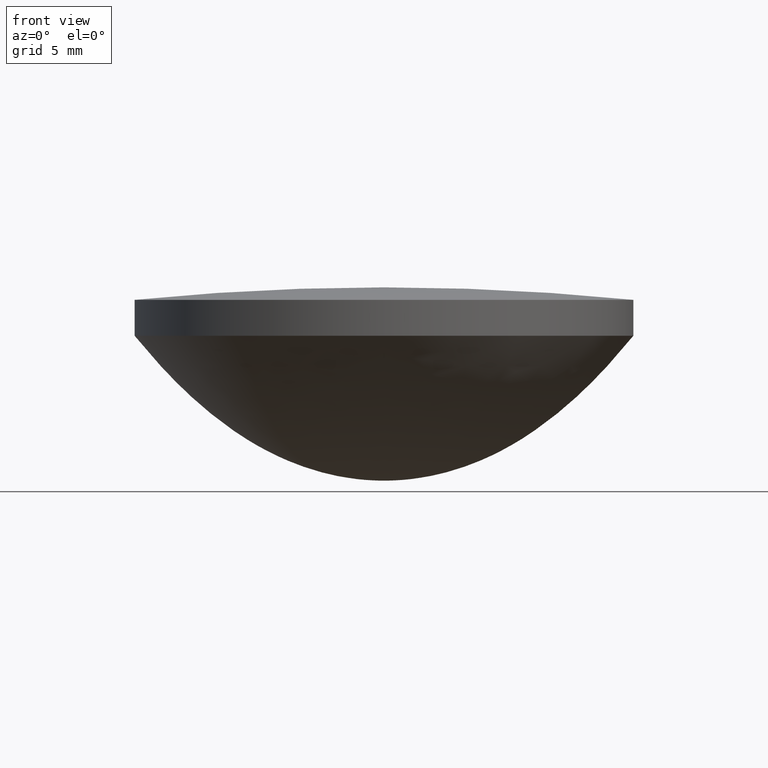
[diagram: clean part render]
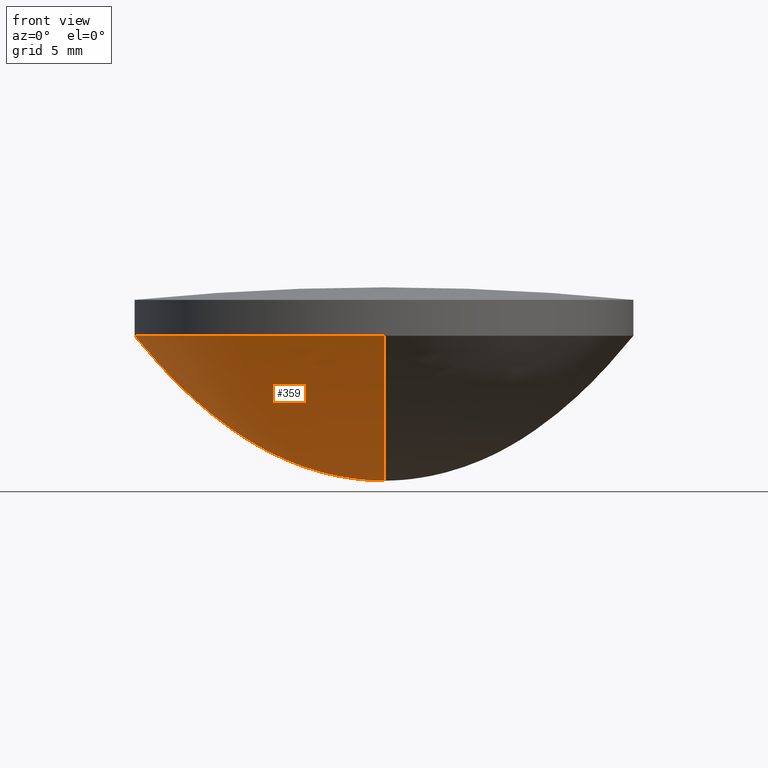
[diagram: same view with one face highlighted and labeled with its STEP entity id]
A machine part, front view. The second image highlights one B-rep face of the part: STEP entity #359.
In plain terms, the highlighted face is a freeform B-spline surface patch.
Its self-contained STEP definition (entity closure, byte-faithful):
#3 = CARTESIAN_POINT ( 'NONE',  ( -2.811554158391679440E-14, -7.157585622776480250, 1.374870183044279770 ) ) ;
#6 = CARTESIAN_POINT ( 'NONE',  ( 16.89259275161060003, -1.951477309285249975E-14, 8.115823315752111355 ) ) ;
#8 = CARTESIAN_POINT ( 'NONE',  ( 0.000000000000000000, 10.35384685393950122, 2.923093322599569888 ) ) ;
#10 = CARTESIAN_POINT ( 'NONE',  ( -18.24433404062659037, -18.24433404062659037, 9.533024363435600890 ) ) ;
#13 = CARTESIAN_POINT ( 'NONE',  ( 13.49554542342179886, -1.950388798514850016E-14, 5.052175101878270347 ) ) ;
#14 = CARTESIAN_POINT ( 'NONE',  ( 0.2778925748532846685, -0.2778925748533313533, -8.029777013077946901E-17 ) ) ;
#21 = CARTESIAN_POINT ( 'NONE',  ( 1.577721810442019932E-30, 7.157585622776470480, 1.374870183044279770 ) ) ;
#24 = CARTESIAN_POINT ( 'NONE',  ( 0.000000000000000000, 9.103154552021610613, 2.244514169672520154 ) ) ;
#31 = CARTESIAN_POINT ( 'NONE',  ( -2.642407831735599011, -2.642407831735563928, 0.1778472089289619973 ) ) ;
#35 = CARTESIAN_POINT ( 'NONE',  ( -5.350825961692438959, 1.003733193081519919E-14, 0.7621936276929139886 ) ) ;
#38 = CARTESIAN_POINT ( 'NONE',  ( 4.655990192516537896, 4.655990192516523685, 0.5752098556579580135 ) ) ;
#39 = CARTESIAN_POINT ( 'NONE',  ( 0.000000000000000000, 9.659041674304420511, 2.534428717358429672 ) ) ;
#41 = CARTESIAN_POINT ( 'NONE',  ( -2.587550535026699699E-14, -15.85053648169409968, 7.093137067620689962 ) ) ;
#43 = CARTESIAN_POINT ( 'NONE',  ( -2.827131229325329812E-14, -4.655990192516539672, 0.5752098556579600119 ) ) ;
#45 = CARTESIAN_POINT ( 'NONE',  ( -9.659041674304429392, 9.631636102693410516E-15, 2.534428717358429672 ) ) ;
#47 = CARTESIAN_POINT ( 'NONE',  ( 0.000000000000000000, 18.24433404062660102, 9.533024363435600890 ) ) ;
#48 = CARTESIAN_POINT ( 'NONE',  ( -2.642407831735579915, 1.009223793100509918E-14, 0.1778472089289619973 ) ) ;
#49 = CARTESIAN_POINT ( 'NONE',  ( 9.103154552021591073, -9.103154552021633705, 2.244514169672522819 ) ) ;
#51 = CARTESIAN_POINT ( 'NONE',  ( -16.89259275161062135, 16.89259275161062135, 8.115823315752120237 ) ) ;
#52 = CARTESIAN_POINT ( 'NONE',  ( 0.000000000000000000, 0.000000000000000000, 0.000000000000000000 ) ) ;
#54 = CARTESIAN_POINT ( 'NONE',  ( 8.408335420827214080, 8.408335420827201645, 1.908429821890168077 ) ) ;
#56 = CARTESIAN_POINT ( 'NONE',  ( 20.00000000000000000, -1.938359619588800056E-14, 11.62345240056929896 ) ) ;
#58 = CARTESIAN_POINT ( 'NONE',  ( 10.90969154080810277, -10.90969154080810277, 3.255762493774881694 ) ) ;
#60 = CARTESIAN_POINT ( 'NONE',  ( 0.000000000000000000, 16.89259275161060003, 8.115823315752120237 ) ) ;
#61 = CARTESIAN_POINT ( 'NONE',  ( 0.000000000000000000, 0.2778925748533090379, 0.000000000000000000 ) ) ;
#62 = B_SPLINE_CURVE_WITH_KNOTS ( 'NONE', 3,
 ( #382, #443, #606, #618, #41, #271, #671, #716, #487, #254, #105, #374, #623, #210, #322, #331, #257, #560, #610, #198, #432, #95, #501, #262, #490, #731, #206 ),
 .UNSPECIFIED., .F., .F.,
 ( 4, 1, 1, 1, 1, 1, 1, 1, 1, 1, 1, 1, 1, 1, 1, 1, 1, 1, 1, 1, 1, 1, 1, 1, 4 ),
 ( 0.000000000000000000, 0.1331924723789049969, 0.2087526336087719980, 0.2453160674682340059, 0.3161049778894040041, 0.4168348326363019996, 0.4276516619708919942, 0.4911184364520199686, 0.5117563586973169487, 0.5523118409319459632, 0.5722518825298780198, 0.6115012980729079839, 0.6308328396796499815, 0.6689534171148749930, 0.6877640771325249647, 0.7249287762474140306, 0.7433038251191860235, 0.7796807415030869715, 0.7977030364038720789, 0.8334556356452639259, 0.8512058759747900272, 0.8864937057606280257, 0.9302999929434540016, 0.9651835744165919717, 1.000000000000000000 ),
 .UNSPECIFIED. ) ;
#64 = CARTESIAN_POINT ( 'NONE',  ( -15.85053648169408724, -15.85053648169408724, 7.093137067620694403 ) ) ;
#65 = CARTESIAN_POINT ( 'NONE',  ( 0.8341952852228249338, -0.8341952852228715631, 0.01232090582175070226 ) ) ;
#67 = CARTESIAN_POINT ( 'NONE',  ( 0.000000000000000000, 12.37189568427879927, 4.222043726575119393 ) ) ;
#75 = VERTEX_POINT ( 'NONE', #392 ) ;
#78 = CARTESIAN_POINT ( 'NONE',  ( 7.157585622776450940, -7.157585622776506895, 1.374870183044279992 ) ) ;
#79 = CARTESIAN_POINT ( 'NONE',  ( 0.000000000000000000, 10.35384685393950122, 2.923093322599569888 ) ) ;
#82 = CARTESIAN_POINT ( 'NONE',  ( 1.577721810442019932E-30, 5.906801585690169887, 0.9311873066207579930 ) ) ;
#85 = FACE_OUTER_BOUND ( 'NONE', #533, .T. ) ;
#86 = CARTESIAN_POINT ( 'NONE',  ( -3.405157014967170159, 1.009083871542779999E-14, 0.3051841653787840114 ) ) ;
#89 = CARTESIAN_POINT ( 'NONE',  ( 0.000000000000000000, 12.37189568427879927, 4.222043726575119393 ) ) ;
#92 = CARTESIAN_POINT ( 'NONE',  ( 2.642407831735542167, -2.642407831735591461, 0.1778472089289608593 ) ) ;
#93 =( BOUNDED_CURVE ( )  B_SPLINE_CURVE ( 2, ( #523, #526, #454 ),
 .UNSPECIFIED., .F., .F. ) 
 B_SPLINE_CURVE_WITH_KNOTS ( ( 3, 3 ),
 ( 3.141592653589790007, 4.712388980384677239 ),
 .UNSPECIFIED. ) 
 CURVE ( )  GEOMETRIC_REPRESENTATION_ITEM ( )  RATIONAL_B_SPLINE_CURVE ( ( 1.000000000000000000, 0.7071067811865503483, 0.9999999999999976685 ) ) 
 REPRESENTATION_ITEM ( '' )  );
#95 = CARTESIAN_POINT ( 'NONE',  ( -2.827417863596979888E-14, -3.405157014967159945, 0.3051841653787840114 ) ) ;
#96 = CARTESIAN_POINT ( 'NONE',  ( -0.8341952852228531334, 0.8341952852228631254, 0.01232090582175089828 ) ) ;
#97 = CARTESIAN_POINT ( 'NONE',  ( 1.577721810442019932E-30, 1.738553428737729778, 0.07245383292584370305 ) ) ;
#98 = CARTESIAN_POINT ( 'NONE',  ( -10.35384685393950122, 9.527354666591729256E-15, 2.923093322599569888 ) ) ;
#101 = CARTESIAN_POINT ( 'NONE',  ( -1.738553428737749762, 1.007670730865139899E-14, 0.07245383292584381407 ) ) ;
#102 = CARTESIAN_POINT ( 'NONE',  ( -1.577721810442019932E-30, 4.655990192516529902, 0.5752098556579590127 ) ) ;
#103 = CARTESIAN_POINT ( 'NONE',  ( 11.74867147864679850, 11.74867147864669903, 3.790659671627021332 ) ) ;
#105 = CARTESIAN_POINT ( 'NONE',  ( -2.761224462193339863E-14, -10.35384685393950122, 2.923093322599559674 ) ) ;
#106 = CARTESIAN_POINT ( 'NONE',  ( -4.655990192516559212, -4.655990192516529902, 0.5752098556579614552 ) ) ;
#108 = CARTESIAN_POINT ( 'NONE',  ( 0.000000000000000000, 9.103154552021610613, 2.244514169672520154 ) ) ;
#110 = CARTESIAN_POINT ( 'NONE',  ( 15.85053648169400553, -15.85053648169408724, 7.093137067620694403 ) ) ;
#113 = CARTESIAN_POINT ( 'NONE',  ( 9.103154552021605284, 9.103154552021605284, 2.244514169672522819 ) ) ;
#115 = CARTESIAN_POINT ( 'NONE',  ( -12.37189568427880282, 12.37189568427880282, 4.222043726575118505 ) ) ;
#117 = CARTESIAN_POINT ( 'NONE',  ( -10.35384685393960247, -10.35384685393950477, 2.923093322599571664 ) ) ;
#119 = CARTESIAN_POINT ( 'NONE',  ( 0.000000000000000000, 14.62628593450459924, 5.970071916331059825 ) ) ;
#123 = CARTESIAN_POINT ( 'NONE',  ( -2.541210482459359900E-14, -16.89259275161060003, 8.115823315752111355 ) ) ;
#125 = CARTESIAN_POINT ( 'NONE',  ( -11.74867147864680028, 9.285022156214069516E-15, 3.790659671627030214 ) ) ;
#130 = VERTEX_POINT ( 'NONE', #155 ) ;
#136 = CARTESIAN_POINT ( 'NONE',  ( 1.224646799147349904E-15, 20.00000000000000000, 11.62345240056929896 ) ) ;
#138 = VERTEX_POINT ( 'NONE', #719 ) ;
#139 = CARTESIAN_POINT ( 'NONE',  ( 6.601634143209182959, -6.601634143209225591, 1.166639816840760346 ) ) ;
#142 = CARTESIAN_POINT ( 'NONE',  ( -2.376557567109769907E-14, -20.00000000000000000, 11.62345240056929896 ) ) ;
#143 = CARTESIAN_POINT ( 'NONE',  ( 4.655990192516509474, -4.655990192516552106, 0.5752098556579593458 ) ) ;
#145 = CARTESIAN_POINT ( 'NONE',  ( 1.577721810442019932E-30, 19.32896964386459970, 10.79889728285850126 ) ) ;
#148 = CARTESIAN_POINT ( 'NONE',  ( -1.577721810442019932E-30, 4.655990192516529902, 0.5752098556579590127 ) ) ;
#149 = CARTESIAN_POINT ( 'NONE',  ( 0.000000000000000000, 2.642407831735559931, 0.1778472089289609981 ) ) ;
#152 = CARTESIAN_POINT ( 'NONE',  ( 5.350825961692409649, -1.886630151301279650E-14, 0.7621936276929109910 ) ) ;
#155 = CARTESIAN_POINT ( 'NONE',  ( -20.00000000000000000, 2.449293598294709668E-15, 11.62345240056929896 ) ) ;
#156 = CARTESIAN_POINT ( 'NONE',  ( 1.738553428737720008, -1.834077869115169989E-14, 0.07245383292584280099 ) ) ;
#157 = B_SPLINE_CURVE_WITH_KNOTS ( 'NONE', 3,
 ( #136, #145, #367, #434, #665, #489, #376, #89, #320, #601, #79, #312, #24, #251, #395, #509, #158, #389, #492, #102, #165, #616, #149, #97, #495, #724, #201 ),
 .UNSPECIFIED., .F., .F.,
 ( 4, 1, 1, 1, 1, 1, 1, 1, 1, 1, 1, 1, 1, 1, 1, 1, 1, 1, 1, 1, 1, 1, 1, 1, 4 ),
 ( 0.000000000000000000, 0.1331924723789049969, 0.2087526336087719980, 0.2453160674682340059, 0.3161049778894040041, 0.4168348326363019996, 0.4276516619708919942, 0.4911184364520199686, 0.5117563586973169487, 0.5523118409319459632, 0.5722518825298780198, 0.6115012980729079839, 0.6308328396796499815, 0.6689534171148749930, 0.6877640771325249647, 0.7249287762474140306, 0.7433038251191860235, 0.7796807415030869715, 0.7977030364038720789, 0.8334556356452639259, 0.8512058759747900272, 0.8864937057606280257, 0.9302999929434540016, 0.9651835744165919717, 1.000000000000000000 ),
 .UNSPECIFIED. ) ;
#158 = CARTESIAN_POINT ( 'NONE',  ( 1.577721810442019932E-30, 6.601634143209209604, 1.166639816840759902 ) ) ;
#159 = CARTESIAN_POINT ( 'NONE',  ( -9.103154552021630153, 9.707118967848380341E-15, 2.244514169672520154 ) ) ;
#161 = CARTESIAN_POINT ( 'NONE',  ( -19.99999999999999645, 19.99999999999999645, 11.62345240056929541 ) ) ;
#162 = CARTESIAN_POINT ( 'NONE',  ( 1.577721810442019932E-30, 4.099995018653480372, 0.4446225274190659937 ) ) ;
#165 = CARTESIAN_POINT ( 'NONE',  ( 1.577721810442019932E-30, 4.099995018653480372, 0.4446225274190659937 ) ) ;
#166 = CARTESIAN_POINT ( 'NONE',  ( -9.103154552021605284, 9.103154552021619494, 2.244514169672522819 ) ) ;
#168 = CARTESIAN_POINT ( 'NONE',  ( -2.415991277295050037E-14, -19.32896964386459970, 10.79889728285850126 ) ) ;
#171 = CARTESIAN_POINT ( 'NONE',  ( 8.408335420827187434, -8.408335420827242501, 1.908429821890168077 ) ) ;
#173 = CARTESIAN_POINT ( 'NONE',  ( 13.49554542342180241, -13.49554542342190011, 5.052175101878271235 ) ) ;
#174 = CARTESIAN_POINT ( 'NONE',  ( 0.000000000000000000, 0.000000000000000000, 0.000000000000000000 ) ) ;
#175 = CARTESIAN_POINT ( 'NONE',  ( -9.659041674304427616, 9.659041674304427616, 2.534428717358428784 ) ) ;
#177 = CARTESIAN_POINT ( 'NONE',  ( 16.89259275161062135, 16.89259275161062135, 8.115823315752107803 ) ) ;
#178 = CARTESIAN_POINT ( 'NONE',  ( 0.000000000000000000, 10.90969154080810100, 3.255762493774890132 ) ) ;
#180 = CARTESIAN_POINT ( 'NONE',  ( -1.577721810442019932E-30, 13.49554542342190011, 5.052175101878280117 ) ) ;
#181 = CARTESIAN_POINT ( 'NONE',  ( 0.000000000000000000, 0.000000000000000000, 0.000000000000000000 ) ) ;
#183 = CARTESIAN_POINT ( 'NONE',  ( -2.710871424418359947E-14, -12.37189568427879927, 4.222043726575119393 ) ) ;
#195 = ORIENTED_EDGE ( 'NONE', *, *, #417, .F. ) ;
#196 = CARTESIAN_POINT ( 'NONE',  ( -6.601634143209210492, 6.601634143209225591, 1.166639816840770338 ) ) ;
#198 = CARTESIAN_POINT ( 'NONE',  ( -2.827131229325329812E-14, -4.655990192516539672, 0.5752098556579600119 ) ) ;
#200 = CARTESIAN_POINT ( 'NONE',  ( 5.350825961692422084, 5.350825961692402544, 0.7621936276929105469 ) ) ;
#201 = CARTESIAN_POINT ( 'NONE',  ( 0.000000000000000000, 0.000000000000000000, 0.000000000000000000 ) ) ;
#204 = CARTESIAN_POINT ( 'NONE',  ( 0.000000000000000000, 2.642407831735559931, 0.1778472089289609981 ) ) ;
#206 = CARTESIAN_POINT ( 'NONE',  ( 0.000000000000000000, 0.000000000000000000, 0.000000000000000000 ) ) ;
#207 = CARTESIAN_POINT ( 'NONE',  ( 1.577721810442019932E-30, 5.906801585690169887, 0.9311873066207579930 ) ) ;
#208 = CARTESIAN_POINT ( 'NONE',  ( -2.775176679116149740E-14, -9.659041674304420511, 2.534428717358429672 ) ) ;
#210 = CARTESIAN_POINT ( 'NONE',  ( -2.796036741346199188E-14, -8.408335420827230067, 1.908429821890170075 ) ) ;
#212 = CARTESIAN_POINT ( 'NONE',  ( 0.000000000000000000, 2.642407831735559931, 0.1778472089289609981 ) ) ;
#214 = CARTESIAN_POINT ( 'NONE',  ( 9.659041674304427616, 9.659041674304399194, 2.534428717358428784 ) ) ;
#216 = CARTESIAN_POINT ( 'NONE',  ( 19.32896964386460681, -19.32896964386460681, 10.79889728285849593 ) ) ;
#221 = CARTESIAN_POINT ( 'NONE',  ( 7.852413137531179643, -1.914616365393309996E-14, 1.659948762402909894 ) ) ;
#223 = CARTESIAN_POINT ( 'NONE',  ( 14.62628593450459924, -1.952789862971189962E-14, 5.970071916331050943 ) ) ;
#226 = CARTESIAN_POINT ( 'NONE',  ( 10.35384685393950122, -1.935287049619559991E-14, 2.923093322599559674 ) ) ;
#228 = CARTESIAN_POINT ( 'NONE',  ( 0.000000000000000000, 15.85053648169409968, 7.093137067620689962 ) ) ;
#231 = CARTESIAN_POINT ( 'NONE',  ( 9.103154552021599955, -1.925892929308839998E-14, 2.244514169672520154 ) ) ;
#234 = CARTESIAN_POINT ( 'NONE',  ( 0.000000000000000000, 20.00000000000000000, 11.62345240056929896 ) ) ;
#238 = CARTESIAN_POINT ( 'NONE',  ( -12.37189568427879927, 9.160219506009639079E-15, 4.222043726575119393 ) ) ;
#242 = VERTEX_POINT ( 'NONE', #726 ) ;
#248 = CARTESIAN_POINT ( 'NONE',  ( -6.601634143209220262, 9.961134044290139837E-15, 1.166639816840769894 ) ) ;
#251 = CARTESIAN_POINT ( 'NONE',  ( 1.577721810442019932E-30, 8.408335420827219409, 1.908429821890170075 ) ) ;
#253 = EDGE_CURVE ( 'NONE', #242, #75, #62, .T. ) ;
#254 = CARTESIAN_POINT ( 'NONE',  ( -2.748806474816759716E-14, -10.90969154080810100, 3.255762493774879918 ) ) ;
#255 = CARTESIAN_POINT ( 'NONE',  ( 7.157585622776478473, 7.157585622776464263, 1.374870183044279992 ) ) ;
#257 = CARTESIAN_POINT ( 'NONE',  ( -2.816779455752589642E-14, -6.601634143209209604, 1.166639816840759902 ) ) ;
#258 = CARTESIAN_POINT ( 'NONE',  ( -2.827417863596979888E-14, -3.405157014967159945, 0.3051841653787840114 ) ) ;
#262 = CARTESIAN_POINT ( 'NONE',  ( -2.820457461063799348E-14, -1.738553428737739770, 0.07245383292584289814 ) ) ;
#263 = CARTESIAN_POINT ( 'NONE',  ( -1.738553428737740214, 1.738553428737748652, 0.07245383292584417489 ) ) ;
#265 = CARTESIAN_POINT ( 'NONE',  ( -19.99999999999999645, 19.99999999999999645, 11.62345240056929896 ) ) ;
#267 = CARTESIAN_POINT ( 'NONE',  ( -4.099995018653491030, 1.008070958659719933E-14, 0.4446225274190669929 ) ) ;
#269 = CARTESIAN_POINT ( 'NONE',  ( 1.577721810442019932E-30, 7.157585622776470480, 1.374870183044279770 ) ) ;
#271 = CARTESIAN_POINT ( 'NONE',  ( -2.637460299360479626E-14, -14.62628593450459924, 5.970071916331050943 ) ) ;
#272 = CARTESIAN_POINT ( 'NONE',  ( -1.577721810442019932E-30, 4.655990192516529902, 0.5752098556579590127 ) ) ;
#274 = CARTESIAN_POINT ( 'NONE',  ( 0.000000000000000000, 9.659041674304420511, 2.534428717358429672 ) ) ;
#276 = CARTESIAN_POINT ( 'NONE',  ( 14.62628593450458681, 14.62628593450458681, 5.970071916331050943 ) ) ;
#278 = CARTESIAN_POINT ( 'NONE',  ( 2.642407831735570145, 2.642407831735549717, 0.1778472089289599989 ) ) ;
#279 = CARTESIAN_POINT ( 'NONE',  ( -2.803588504408989570E-14, -7.852413137531199183, 1.659948762402920108 ) ) ;
#281 = CARTESIAN_POINT ( 'NONE',  ( 19.99999999999999645, 19.99999999999999645, 11.62345240056929896 ) ) ;
#285 = CARTESIAN_POINT ( 'NONE',  ( -7.157585622776506895, -7.157585622776464263, 1.374870183044289984 ) ) ;
#287 = CARTESIAN_POINT ( 'NONE',  ( 19.32896964386460681, 19.32896964386460681, 10.79889728285849593 ) ) ;
#289 = CARTESIAN_POINT ( 'NONE',  ( -0.2778925748533412898, -0.2778925748533030982, 8.029777013077946901E-17 ) ) ;
#290 = CARTESIAN_POINT ( 'NONE',  ( 10.90969154080810100, -1.938839885884610265E-14, 3.255762493774879918 ) ) ;
#292 = CARTESIAN_POINT ( 'NONE',  ( -15.85053648169408724, 15.85053648169408724, 7.093137067620694403 ) ) ;
#294 = CARTESIAN_POINT ( 'NONE',  ( 7.157585622776470480, -1.907558003044569835E-14, 1.374870183044279770 ) ) ;
#296 = CARTESIAN_POINT ( 'NONE',  ( 0.000000000000000000, 14.62628593450459924, 5.970071916331059825 ) ) ;
#297 = CARTESIAN_POINT ( 'NONE',  ( 0.8341952852228389226, -1.818668548153289846E-14, 0.01232090582175059991 ) ) ;
#298 = CARTESIAN_POINT ( 'NONE',  ( -2.816779455752589642E-14, -6.601634143209209604, 1.166639816840759902 ) ) ;
#301 = CARTESIAN_POINT ( 'NONE',  ( 12.37189568427880282, 12.37189568427870512, 4.222043726575111400 ) ) ;
#302 = CARTESIAN_POINT ( 'NONE',  ( 0.000000000000000000, 0.000000000000000000, 0.000000000000000000 ) ) ;
#312 = CARTESIAN_POINT ( 'NONE',  ( 0.000000000000000000, 9.659041674304420511, 2.534428717358429672 ) ) ;
#315 = CARTESIAN_POINT ( 'NONE',  ( -5.906801585690172551, 5.906801585690178769, 0.9311873066207604355 ) ) ;
#318 = CARTESIAN_POINT ( 'NONE',  ( 0.000000000000000000, 20.00000000000000000, 11.62345240056929896 ) ) ;
#319 = CARTESIAN_POINT ( 'NONE',  ( -5.350825961692422084, 5.350825961692430965, 0.7621936276929132115 ) ) ;
#320 = CARTESIAN_POINT ( 'NONE',  ( 0.000000000000000000, 11.74867147864680028, 3.790659671627020000 ) ) ;
#322 = CARTESIAN_POINT ( 'NONE',  ( -2.803588504408989570E-14, -7.852413137531199183, 1.659948762402920108 ) ) ;
#323 = EDGE_CURVE ( 'NONE', #138, #130, #462, .T. ) ;
#324 = CARTESIAN_POINT ( 'NONE',  ( 1.577721810442019932E-30, 1.738553428737729778, 0.07245383292584370305 ) ) ;
#328 = CARTESIAN_POINT ( 'NONE',  ( -4.099995018653482148, 4.099995018653490142, 0.4446225274190667709 ) ) ;
#329 = CARTESIAN_POINT ( 'NONE',  ( -10.90969154080810100, 9.435717771835079619E-15, 3.255762493774890132 ) ) ;
#331 = CARTESIAN_POINT ( 'NONE',  ( -2.811554158391679440E-14, -7.157585622776480250, 1.374870183044279770 ) ) ;
#333 = CARTESIAN_POINT ( 'NONE',  ( 4.099995018653453727, -4.099995018653503465, 0.4446225274190639398 ) ) ;
#335 = CARTESIAN_POINT ( 'NONE',  ( -10.90969154080810277, 10.90969154080810277, 3.255762493774888355 ) ) ;
#337 = CARTESIAN_POINT ( 'NONE',  ( -1.577721810442019932E-30, 13.49554542342190011, 5.052175101878280117 ) ) ;
#338 = CARTESIAN_POINT ( 'NONE',  ( 3.405157014967150175, -1.860035138443940068E-14, 0.3051841653787820130 ) ) ;
#339 = CARTESIAN_POINT ( 'NONE',  ( -7.852413137531187637, 7.852413137531200960, 1.659948762402918776 ) ) ;
#342 = CARTESIAN_POINT ( 'NONE',  ( -14.62628593450459924, 8.637907789203379445E-15, 5.970071916331059825 ) ) ;
#343 = CARTESIAN_POINT ( 'NONE',  ( -2.806756668730879633E-14, -0.2778925748533169759, 9.833640716932900425E-33 ) ) ;
#345 = CARTESIAN_POINT ( 'NONE',  ( -7.852413137531215170, -7.852413137531187637, 1.659948762402918776 ) ) ;
#347 = CARTESIAN_POINT ( 'NONE',  ( -18.24433404062659037, 18.24433404062659037, 9.533024363435616877 ) ) ;
#348 = CARTESIAN_POINT ( 'NONE',  ( 10.35384685393950477, 10.35384685393950477, 2.923093322599557009 ) ) ;
#350 = CARTESIAN_POINT ( 'NONE',  ( -19.32896964386460681, -19.32896964386460681, 10.79889728285849593 ) ) ;
#353 = CARTESIAN_POINT ( 'NONE',  ( 0.000000000000000000, 16.89259275161060003, 8.115823315752120237 ) ) ;
#354 = CARTESIAN_POINT ( 'NONE',  ( -0.8341952852228814441, -0.8341952852228431414, 0.01232090582175119492 ) ) ;
#355 = CARTESIAN_POINT ( 'NONE',  ( -6.601634143209238914, -6.601634143209196282, 1.166639816840770338 ) ) ;
#357 = CARTESIAN_POINT ( 'NONE',  ( -11.74867147864679850, 11.74867147864679850, 3.790659671627027993 ) ) ;
#359 = ADVANCED_FACE ( 'NONE', ( #85 ), #371, .T. ) ;
#367 = CARTESIAN_POINT ( 'NONE',  ( 0.000000000000000000, 18.24433404062660102, 9.533024363435600890 ) ) ;
#369 = ORIENTED_EDGE ( 'NONE', *, *, #323, .F. ) ;
#370 = CARTESIAN_POINT ( 'NONE',  ( 6.601634143209199834, -1.901512752549809610E-14, 1.166639816840759902 ) ) ;
#371 =( BOUNDED_SURFACE ( )  B_SPLINE_SURFACE ( 3, 2, ( 
 ( #318, #265, #497, #663, #142, #546, #56, #281, #234 ),
 ( #521, #453, #741, #350, #168, #216, #685, #287, #398 ),
 ( #412, #347, #408, #10, #566, #457, #642, #518, #47 ),
 ( #60, #51, #404, #629, #123, #584, #6, #177, #353 ),
 ( #228, #292, #695, #64, #468, #110, #512, #415, #577 ),
 ( #119, #464, #342, #638, #691, #572, #223, #276, #296 ),
 ( #337, #525, #699, #507, #474, #173, #13, #736, #180 ),
 ( #634, #115, #238, #702, #183, #581, #645, #301, #67 ),
 ( #528, #357, #125, #587, #390, #632, #504, #103, #729 ),
 ( #178, #335, #329, #570, #621, #58, #290, #693, #519 ),
 ( #8, #461, #98, #117, #455, #564, #226, #348, #739 ),
 ( #274, #175, #45, #451, #208, #682, #734, #214, #39 ),
 ( #410, #166, #159, #406, #396, #49, #231, #113, #108 ),
 ( #689, #636, #516, #510, #575, #171, #579, #54, #678 ),
 ( #558, #339, #466, #345, #279, #627, #221, #402, #446 ),
 ( #269, #697, #499, #285, #3, #78, #294, #255, #21 ),
 ( #471, #196, #248, #355, #298, #139, #370, #488, #482 ),
 ( #82, #315, #552, #732, #611, #433, #556, #720, #207 ),
 ( #436, #319, #35, #508, #668, #664, #152, #200, #393 ),
 ( #272, #624, #568, #106, #43, #143, #450, #38, #148 ),
 ( #680, #328, #267, #375, #498, #333, #491, #502, #162 ),
 ( #379, #607, #86, #738, #258, #547, #338, #723, #562 ),
 ( #212, #494, #48, #31, #676, #92, #672, #278, #204 ),
 ( #324, #263, #101, #444, #620, #440, #156, #388, #383 ),
 ( #615, #96, #727, #354, #513, #65, #297, #405, #409 ),
 ( #465, #700, #692, #289, #343, #14, #476, #696, #61 ),
 ( #643, #640, #181, #582, #703, #413, #52, #174, #302 ) ),
 .UNSPECIFIED., .F., .T., .T. ) 
 B_SPLINE_SURFACE_WITH_KNOTS ( ( 4, 1, 1, 1, 1, 1, 1, 1, 1, 1, 1, 1, 1, 1, 1, 1, 1, 1, 1, 1, 1, 1, 1, 1, 4 ),
 ( 3, 2, 2, 2, 3 ),
 ( 0.000000000000000000, 0.1331924723789049969, 0.2087526336087719980, 0.2453160674682340059, 0.3161049778894040041, 0.4168348326363019996, 0.4276516619708919942, 0.4911184364520199686, 0.5117563586973169487, 0.5523118409319459632, 0.5722518825298780198, 0.6115012980729079839, 0.6308328396796499815, 0.6689534171148749930, 0.6877640771325249647, 0.7249287762474140306, 0.7433038251191860235, 0.7796807415030869715, 0.7977030364038720789, 0.8334556356452639259, 0.8512058759747900272, 0.8864937057606280257, 0.9302999929434540016, 0.9651835744165919717, 1.000000000000000000 ),
 ( 0.000000000000000000, 90.00000000000000000, 180.0000000000000000, 270.0000000000000000, 360.0000000000000000 ),
 .UNSPECIFIED. ) 
 GEOMETRIC_REPRESENTATION_ITEM ( )  RATIONAL_B_SPLINE_SURFACE ( (
 ( 1.000000000000000000, 0.7071067811865480168, 1.000000000000000000, 0.7071067811865480168, 1.000000000000000000, 0.7071067811865480168, 1.000000000000000000, 0.7071067811865480168, 1.000000000000000000),
 ( 1.000000000000000000, 0.7071067811865480168, 1.000000000000000000, 0.7071067811865480168, 1.000000000000000000, 0.7071067811865480168, 1.000000000000000000, 0.7071067811865480168, 1.000000000000000000),
 ( 1.000000000000000000, 0.7071067811865480168, 1.000000000000000000, 0.7071067811865480168, 1.000000000000000000, 0.7071067811865480168, 1.000000000000000000, 0.7071067811865480168, 1.000000000000000000),
 ( 1.000000000000000000, 0.7071067811865480168, 1.000000000000000000, 0.7071067811865480168, 1.000000000000000000, 0.7071067811865480168, 1.000000000000000000, 0.7071067811865480168, 1.000000000000000000),
 ( 1.000000000000000000, 0.7071067811865480168, 1.000000000000000000, 0.7071067811865480168, 1.000000000000000000, 0.7071067811865480168, 1.000000000000000000, 0.7071067811865480168, 1.000000000000000000),
 ( 1.000000000000000000, 0.7071067811865480168, 1.000000000000000000, 0.7071067811865480168, 1.000000000000000000, 0.7071067811865480168, 1.000000000000000000, 0.7071067811865480168, 1.000000000000000000),
 ( 1.000000000000000000, 0.7071067811865480168, 1.000000000000000000, 0.7071067811865480168, 1.000000000000000000, 0.7071067811865480168, 1.000000000000000000, 0.7071067811865480168, 1.000000000000000000),
 ( 1.000000000000000000, 0.7071067811865480168, 1.000000000000000000, 0.7071067811865480168, 1.000000000000000000, 0.7071067811865480168, 1.000000000000000000, 0.7071067811865480168, 1.000000000000000000),
 ( 1.000000000000000000, 0.7071067811865480168, 1.000000000000000000, 0.7071067811865480168, 1.000000000000000000, 0.7071067811865480168, 1.000000000000000000, 0.7071067811865480168, 1.000000000000000000),
 ( 1.000000000000000000, 0.7071067811865480168, 1.000000000000000000, 0.7071067811865480168, 1.000000000000000000, 0.7071067811865480168, 1.000000000000000000, 0.7071067811865480168, 1.000000000000000000),
 ( 1.000000000000000000, 0.7071067811865480168, 1.000000000000000000, 0.7071067811865480168, 1.000000000000000000, 0.7071067811865480168, 1.000000000000000000, 0.7071067811865480168, 1.000000000000000000),
 ( 1.000000000000000000, 0.7071067811865480168, 1.000000000000000000, 0.7071067811865480168, 1.000000000000000000, 0.7071067811865480168, 1.000000000000000000, 0.7071067811865480168, 1.000000000000000000),
 ( 1.000000000000000000, 0.7071067811865480168, 1.000000000000000000, 0.7071067811865480168, 1.000000000000000000, 0.7071067811865480168, 1.000000000000000000, 0.7071067811865480168, 1.000000000000000000),
 ( 1.000000000000000000, 0.7071067811865480168, 1.000000000000000000, 0.7071067811865480168, 1.000000000000000000, 0.7071067811865480168, 1.000000000000000000, 0.7071067811865480168, 1.000000000000000000),
 ( 1.000000000000000000, 0.7071067811865480168, 1.000000000000000000, 0.7071067811865480168, 1.000000000000000000, 0.7071067811865480168, 1.000000000000000000, 0.7071067811865480168, 1.000000000000000000),
 ( 1.000000000000000000, 0.7071067811865480168, 1.000000000000000000, 0.7071067811865480168, 1.000000000000000000, 0.7071067811865480168, 1.000000000000000000, 0.7071067811865480168, 1.000000000000000000),
 ( 1.000000000000000000, 0.7071067811865480168, 1.000000000000000000, 0.7071067811865480168, 1.000000000000000000, 0.7071067811865480168, 1.000000000000000000, 0.7071067811865480168, 1.000000000000000000),
 ( 1.000000000000000000, 0.7071067811865480168, 1.000000000000000000, 0.7071067811865480168, 1.000000000000000000, 0.7071067811865480168, 1.000000000000000000, 0.7071067811865480168, 1.000000000000000000),
 ( 1.000000000000000000, 0.7071067811865480168, 1.000000000000000000, 0.7071067811865480168, 1.000000000000000000, 0.7071067811865480168, 1.000000000000000000, 0.7071067811865480168, 1.000000000000000000),
 ( 1.000000000000000000, 0.7071067811865480168, 1.000000000000000000, 0.7071067811865480168, 1.000000000000000000, 0.7071067811865480168, 1.000000000000000000, 0.7071067811865480168, 1.000000000000000000),
 ( 1.000000000000000000, 0.7071067811865480168, 1.000000000000000000, 0.7071067811865480168, 1.000000000000000000, 0.7071067811865480168, 1.000000000000000000, 0.7071067811865480168, 1.000000000000000000),
 ( 1.000000000000000000, 0.7071067811865480168, 1.000000000000000000, 0.7071067811865480168, 1.000000000000000000, 0.7071067811865480168, 1.000000000000000000, 0.7071067811865480168, 1.000000000000000000),
 ( 1.000000000000000000, 0.7071067811865480168, 1.000000000000000000, 0.7071067811865480168, 1.000000000000000000, 0.7071067811865480168, 1.000000000000000000, 0.7071067811865480168, 1.000000000000000000),
 ( 1.000000000000000000, 0.7071067811865480168, 1.000000000000000000, 0.7071067811865480168, 1.000000000000000000, 0.7071067811865480168, 1.000000000000000000, 0.7071067811865480168, 1.000000000000000000),
 ( 1.000000000000000000, 0.7071067811865480168, 1.000000000000000000, 0.7071067811865480168, 1.000000000000000000, 0.7071067811865480168, 1.000000000000000000, 0.7071067811865480168, 1.000000000000000000),
 ( 1.000000000000000000, 0.7071067811865480168, 1.000000000000000000, 0.7071067811865480168, 1.000000000000000000, 0.7071067811865480168, 1.000000000000000000, 0.7071067811865480168, 1.000000000000000000),
 ( 1.000000000000000000, 0.7071067811865480168, 1.000000000000000000, 0.7071067811865480168, 1.000000000000000000, 0.7071067811865480168, 1.000000000000000000, 0.7071067811865480168, 1.000000000000000000) ) ) 
 REPRESENTATION_ITEM ( '' )  SURFACE ( )  );
#374 = CARTESIAN_POINT ( 'NONE',  ( -2.775176679116149740E-14, -9.659041674304420511, 2.534428717358429672 ) ) ;
#375 = CARTESIAN_POINT ( 'NONE',  ( -4.099995018653511458, -4.099995018653468826, 0.4446225274190661048 ) ) ;
#376 = CARTESIAN_POINT ( 'NONE',  ( -1.577721810442019932E-30, 13.49554542342190011, 5.052175101878280117 ) ) ;
#378 = CARTESIAN_POINT ( 'NONE',  ( -20.00000000000000000, 2.449293598294709668E-15, 11.62345240056929896 ) ) ;
#379 = CARTESIAN_POINT ( 'NONE',  ( 1.577721810442019932E-30, 3.405157014967159945, 0.3051841653787820130 ) ) ;
#382 = CARTESIAN_POINT ( 'NONE',  ( -2.376557567109769907E-14, -20.00000000000000000, 11.62345240056929896 ) ) ;
#383 = CARTESIAN_POINT ( 'NONE',  ( 1.577721810442019932E-30, 1.738553428737729778, 0.07245383292584370305 ) ) ;
#388 = CARTESIAN_POINT ( 'NONE',  ( 1.738553428737740214, 1.738553428737720452, 0.07245383292584317569 ) ) ;
#389 = CARTESIAN_POINT ( 'NONE',  ( 1.577721810442019932E-30, 5.906801585690169887, 0.9311873066207579930 ) ) ;
#390 = CARTESIAN_POINT ( 'NONE',  ( -2.728169034295089841E-14, -11.74867147864680028, 3.790659671627020000 ) ) ;
#392 = CARTESIAN_POINT ( 'NONE',  ( 0.000000000000000000, 0.000000000000000000, 0.000000000000000000 ) ) ;
#393 = CARTESIAN_POINT ( 'NONE',  ( -1.577721810442019932E-30, 5.350825961692419419, 0.7621936276929119902 ) ) ;
#395 = CARTESIAN_POINT ( 'NONE',  ( 3.155443620884050024E-30, 7.852413137531188525, 1.659948762402920108 ) ) ;
#396 = CARTESIAN_POINT ( 'NONE',  ( -2.785123335250909808E-14, -9.103154552021621271, 2.244514169672520154 ) ) ;
#398 = CARTESIAN_POINT ( 'NONE',  ( 1.577721810442019932E-30, 19.32896964386459970, 10.79889728285850126 ) ) ;
#402 = CARTESIAN_POINT ( 'NONE',  ( 7.852413137531187637, 7.852413137531173426, 1.659948762402910782 ) ) ;
#404 = CARTESIAN_POINT ( 'NONE',  ( -16.89259275161060003, 7.966077695997039606E-15, 8.115823315752120237 ) ) ;
#405 = CARTESIAN_POINT ( 'NONE',  ( 0.8341952852228544657, 0.8341952852228347037, 0.01232090582175040562 ) ) ;
#406 = CARTESIAN_POINT ( 'NONE',  ( -9.103154552021647916, -9.103154552021605284, 2.244514169672522819 ) ) ;
#408 = CARTESIAN_POINT ( 'NONE',  ( -18.24433404062660102, 7.513471372652820048E-15, 9.533024363435600890 ) ) ;
#409 = CARTESIAN_POINT ( 'NONE',  ( 1.577721810442019932E-30, 0.8341952852228489146, 0.01232090582175070052 ) ) ;
#410 = CARTESIAN_POINT ( 'NONE',  ( 0.000000000000000000, 9.103154552021610613, 2.244514169672520154 ) ) ;
#412 = CARTESIAN_POINT ( 'NONE',  ( 0.000000000000000000, 18.24433404062660102, 9.533024363435600890 ) ) ;
#413 = CARTESIAN_POINT ( 'NONE',  ( 0.000000000000000000, 0.000000000000000000, 0.000000000000000000 ) ) ;
#415 = CARTESIAN_POINT ( 'NONE',  ( 15.85053648169408724, 15.85053648169408724, 7.093137067620694403 ) ) ;
#417 = EDGE_CURVE ( 'NONE', #130, #242, #93, .T. ) ;
#432 = CARTESIAN_POINT ( 'NONE',  ( -2.827868960711719743E-14, -4.099995018653480372, 0.4446225274190649945 ) ) ;
#433 = CARTESIAN_POINT ( 'NONE',  ( 5.906801585690143241, -5.906801585690193868, 0.9311873066207574379 ) ) ;
#434 = CARTESIAN_POINT ( 'NONE',  ( 0.000000000000000000, 16.89259275161060003, 8.115823315752120237 ) ) ;
#436 = CARTESIAN_POINT ( 'NONE',  ( -1.577721810442019932E-30, 5.350825961692419419, 0.7621936276929119902 ) ) ;
#438 = CARTESIAN_POINT ( 'NONE',  ( 1.224646799147349904E-15, 20.00000000000000000, 11.62345240056929896 ) ) ;
#440 = CARTESIAN_POINT ( 'NONE',  ( 1.738553428737711792, -1.738553428737759976, 0.07245383292584248180 ) ) ;
#443 = CARTESIAN_POINT ( 'NONE',  ( -2.415991277295050037E-14, -19.32896964386459970, 10.79889728285850126 ) ) ;
#444 = CARTESIAN_POINT ( 'NONE',  ( -1.738553428737768414, -1.738553428737729112, 0.07245383292584345325 ) ) ;
#446 = CARTESIAN_POINT ( 'NONE',  ( 3.155443620884050024E-30, 7.852413137531188525, 1.659948762402920108 ) ) ;
#450 = CARTESIAN_POINT ( 'NONE',  ( 4.655990192516520132, -1.877608419688349577E-14, 0.5752098556579579025 ) ) ;
#451 = CARTESIAN_POINT ( 'NONE',  ( -9.659041674304456038, -9.659041674304415181, 2.534428717358428784 ) ) ;
#453 = CARTESIAN_POINT ( 'NONE',  ( -19.32896964386460681, 19.32896964386460681, 10.79889728285849593 ) ) ;
#454 = CARTESIAN_POINT ( 'NONE',  ( -2.376557567109769907E-14, -20.00000000000000000, 11.62345240056929896 ) ) ;
#455 = CARTESIAN_POINT ( 'NONE',  ( -2.761224462193339863E-14, -10.35384685393950122, 2.923093322599559674 ) ) ;
#457 = CARTESIAN_POINT ( 'NONE',  ( 18.24433404062659037, -18.24433404062659037, 9.533024363435588455 ) ) ;
#461 = CARTESIAN_POINT ( 'NONE',  ( -10.35384685393950477, 10.35384685393950477, 2.923093322599571664 ) ) ;
#462 =( BOUNDED_CURVE ( )  B_SPLINE_CURVE ( 2, ( #438, #161, #378 ),
 .UNSPECIFIED., .F., .T. ) 
 B_SPLINE_CURVE_WITH_KNOTS ( ( 3, 3 ),
 ( 1.570796326794899889, 3.141592653589790007 ),
 .UNSPECIFIED. ) 
 CURVE ( )  GEOMETRIC_REPRESENTATION_ITEM ( )  RATIONAL_B_SPLINE_CURVE ( ( 1.000000000000000000, 0.7071067811865480168, 1.000000000000000000 ) ) 
 REPRESENTATION_ITEM ( '' )  );
#464 = CARTESIAN_POINT ( 'NONE',  ( -14.62628593450458681, 14.62628593450458681, 5.970071916331058048 ) ) ;
#465 = CARTESIAN_POINT ( 'NONE',  ( 0.000000000000000000, 0.2778925748533090379, 0.000000000000000000 ) ) ;
#466 = CARTESIAN_POINT ( 'NONE',  ( -7.852413137531209841, 9.851364651602808330E-15, 1.659948762402920108 ) ) ;
#468 = CARTESIAN_POINT ( 'NONE',  ( -2.587550535026699699E-14, -15.85053648169409968, 7.093137067620689962 ) ) ;
#471 = CARTESIAN_POINT ( 'NONE',  ( 1.577721810442019932E-30, 6.601634143209209604, 1.166639816840759902 ) ) ;
#474 = CARTESIAN_POINT ( 'NONE',  ( -2.676658448241229756E-14, -13.49554542342190011, 5.052175101878280117 ) ) ;
#476 = CARTESIAN_POINT ( 'NONE',  ( 0.2778925748532989903, -1.808696017246919925E-14, -8.029777013077950599E-17 ) ) ;
#482 = CARTESIAN_POINT ( 'NONE',  ( 1.577721810442019932E-30, 6.601634143209209604, 1.166639816840759902 ) ) ;
#487 = CARTESIAN_POINT ( 'NONE',  ( -2.728169034295089841E-14, -11.74867147864680028, 3.790659671627020000 ) ) ;
#488 = CARTESIAN_POINT ( 'NONE',  ( 6.601634143209210492, 6.601634143209196282, 1.166639816840760346 ) ) ;
#489 = CARTESIAN_POINT ( 'NONE',  ( 0.000000000000000000, 14.62628593450459924, 5.970071916331059825 ) ) ;
#490 = CARTESIAN_POINT ( 'NONE',  ( -2.812857380618150178E-14, -0.8341952852228570192, 0.01232090582175100063 ) ) ;
#491 = CARTESIAN_POINT ( 'NONE',  ( 4.099995018653470602, -1.870008459813129808E-14, 0.4446225274190639953 ) ) ;
#492 = CARTESIAN_POINT ( 'NONE',  ( -1.577721810442019932E-30, 5.350825961692419419, 0.7621936276929119902 ) ) ;
#494 = CARTESIAN_POINT ( 'NONE',  ( -2.642407831735570145, 2.642407831735577695, 0.1778472089289619973 ) ) ;
#495 = CARTESIAN_POINT ( 'NONE',  ( 1.577721810442019932E-30, 0.8341952852228489146, 0.01232090582175070052 ) ) ;
#497 = CARTESIAN_POINT ( 'NONE',  ( -20.00000000000000000, 6.831273073504388855E-15, 11.62345240056929896 ) ) ;
#498 = CARTESIAN_POINT ( 'NONE',  ( -2.827868960711719743E-14, -4.099995018653480372, 0.4446225274190649945 ) ) ;
#499 = CARTESIAN_POINT ( 'NONE',  ( -7.157585622776490020, 9.916512985726769014E-15, 1.374870183044289984 ) ) ;
#501 = CARTESIAN_POINT ( 'NONE',  ( -2.825435747977460106E-14, -2.642407831735570145, 0.1778472089289609981 ) ) ;
#502 = CARTESIAN_POINT ( 'NONE',  ( 4.099995018653482148, 4.099995018653460832, 0.4446225274190653831 ) ) ;
#504 = CARTESIAN_POINT ( 'NONE',  ( 11.74867147864669903, -1.943546547879269836E-14, 3.790659671627020000 ) ) ;
#507 = CARTESIAN_POINT ( 'NONE',  ( -13.49554542342190011, -13.49554542342180241, 5.052175101878279229 ) ) ;
#508 = CARTESIAN_POINT ( 'NONE',  ( -5.350825961692451394, -5.350825961692408761, 0.7621936276929147658 ) ) ;
#509 = CARTESIAN_POINT ( 'NONE',  ( 1.577721810442019932E-30, 7.157585622776470480, 1.374870183044279770 ) ) ;
#510 = CARTESIAN_POINT ( 'NONE',  ( -8.408335420827256712, -8.408335420827214080, 1.908429821890168077 ) ) ;
#512 = CARTESIAN_POINT ( 'NONE',  ( 15.85053648169409968, -1.952802548256929980E-14, 7.093137067620689962 ) ) ;
#513 = CARTESIAN_POINT ( 'NONE',  ( -2.812857380618150178E-14, -0.8341952852228570192, 0.01232090582175100063 ) ) ;
#516 = CARTESIAN_POINT ( 'NONE',  ( -8.408335420827238949, 9.791536284814760103E-15, 1.908429821890170075 ) ) ;
#518 = CARTESIAN_POINT ( 'NONE',  ( 18.24433404062659037, 18.24433404062659037, 9.533024363435600890 ) ) ;
#519 = CARTESIAN_POINT ( 'NONE',  ( 0.000000000000000000, 10.90969154080810100, 3.255762493774890132 ) ) ;
#521 = CARTESIAN_POINT ( 'NONE',  ( 1.577721810442019932E-30, 19.32896964386459970, 10.79889728285850126 ) ) ;
#523 = CARTESIAN_POINT ( 'NONE',  ( -20.00000000000000000, 2.449293598294709668E-15, 11.62345240056929896 ) ) ;
#525 = CARTESIAN_POINT ( 'NONE',  ( -13.49554542342190011, 13.49554542342190011, 5.052175101878279229 ) ) ;
#526 = CARTESIAN_POINT ( 'NONE',  ( -19.99999999999999645, -19.99999999999977618, 11.62345240056929718 ) ) ;
#528 = CARTESIAN_POINT ( 'NONE',  ( 0.000000000000000000, 11.74867147864680028, 3.790659671627020000 ) ) ;
#533 = EDGE_LOOP ( 'NONE', ( #660, #195, #369, #599 ) ) ;
#546 = CARTESIAN_POINT ( 'NONE',  ( 19.99999999999999645, -19.99999999999999645, 11.62345240056929896 ) ) ;
#547 = CARTESIAN_POINT ( 'NONE',  ( 3.405157014967127971, -3.405157014967177265, 0.3051841653787830677 ) ) ;
#552 = CARTESIAN_POINT ( 'NONE',  ( -5.906801585690189427, 1.000753480968609830E-14, 0.9311873066207598804 ) ) ;
#556 = CARTESIAN_POINT ( 'NONE',  ( 5.906801585690160117, -1.893461107645479681E-14, 0.9311873066207569938 ) ) ;
#558 = CARTESIAN_POINT ( 'NONE',  ( 3.155443620884050024E-30, 7.852413137531188525, 1.659948762402920108 ) ) ;
#560 = CARTESIAN_POINT ( 'NONE',  ( -2.821877132062950052E-14, -5.906801585690180545, 0.9311873066207588812 ) ) ;
#562 = CARTESIAN_POINT ( 'NONE',  ( 1.577721810442019932E-30, 3.405157014967159945, 0.3051841653787820130 ) ) ;
#564 = CARTESIAN_POINT ( 'NONE',  ( 10.35384685393950477, -10.35384685393960247, 2.923093322599557009 ) ) ;
#566 = CARTESIAN_POINT ( 'NONE',  ( -2.475863765529090030E-14, -18.24433404062660102, 9.533024363435600890 ) ) ;
#568 = CARTESIAN_POINT ( 'NONE',  ( -4.655990192516550330, 1.006542244498249964E-14, 0.5752098556579610111 ) ) ;
#570 = CARTESIAN_POINT ( 'NONE',  ( -10.90969154080810277, -10.90969154080810277, 3.255762493774888355 ) ) ;
#572 = CARTESIAN_POINT ( 'NONE',  ( 14.62628593450458681, -14.62628593450470049, 5.970071916331050943 ) ) ;
#575 = CARTESIAN_POINT ( 'NONE',  ( -2.796036741346199188E-14, -8.408335420827230067, 1.908429821890170075 ) ) ;
#577 = CARTESIAN_POINT ( 'NONE',  ( 0.000000000000000000, 15.85053648169409968, 7.093137067620689962 ) ) ;
#579 = CARTESIAN_POINT ( 'NONE',  ( 8.408335420827208750, -1.919855523457460063E-14, 1.908429821890170075 ) ) ;
#581 = CARTESIAN_POINT ( 'NONE',  ( 12.37189568427870512, -12.37189568427880282, 4.222043726575111400 ) ) ;
#582 = CARTESIAN_POINT ( 'NONE',  ( 0.000000000000000000, 0.000000000000000000, 0.000000000000000000 ) ) ;
#584 = CARTESIAN_POINT ( 'NONE',  ( 16.89259275161062135, -16.89259275161062135, 8.115823315752107803 ) ) ;
#587 = CARTESIAN_POINT ( 'NONE',  ( -11.74867147864679850, -11.74867147864669903, 3.790659671627027993 ) ) ;
#599 = ORIENTED_EDGE ( 'NONE', *, *, #625, .T. ) ;
#601 = CARTESIAN_POINT ( 'NONE',  ( 0.000000000000000000, 10.90969154080810100, 3.255762493774890132 ) ) ;
#606 = CARTESIAN_POINT ( 'NONE',  ( -2.475863765529090030E-14, -18.24433404062660102, 9.533024363435600890 ) ) ;
#607 = CARTESIAN_POINT ( 'NONE',  ( -3.405157014967163498, 3.405157014967170603, 0.3051841653787830677 ) ) ;
#610 = CARTESIAN_POINT ( 'NONE',  ( -2.824834625514989765E-14, -5.350825961692430077, 0.7621936276929139886 ) ) ;
#611 = CARTESIAN_POINT ( 'NONE',  ( -2.821877132062950052E-14, -5.906801585690180545, 0.9311873066207588812 ) ) ;
#615 = CARTESIAN_POINT ( 'NONE',  ( 1.577721810442019932E-30, 0.8341952852228489146, 0.01232090582175070052 ) ) ;
#616 = CARTESIAN_POINT ( 'NONE',  ( 1.577721810442019932E-30, 3.405157014967159945, 0.3051841653787820130 ) ) ;
#618 = CARTESIAN_POINT ( 'NONE',  ( -2.541210482459359900E-14, -16.89259275161060003, 8.115823315752111355 ) ) ;
#620 = CARTESIAN_POINT ( 'NONE',  ( -2.820457461063799348E-14, -1.738553428737739770, 0.07245383292584289814 ) ) ;
#621 = CARTESIAN_POINT ( 'NONE',  ( -2.748806474816759716E-14, -10.90969154080810100, 3.255762493774879918 ) ) ;
#623 = CARTESIAN_POINT ( 'NONE',  ( -2.785123335250909808E-14, -9.103154552021621271, 2.244514169672520154 ) ) ;
#624 = CARTESIAN_POINT ( 'NONE',  ( -4.655990192516537896, 4.655990192516552106, 0.5752098556579614552 ) ) ;
#625 = EDGE_CURVE ( 'NONE', #138, #75, #157, .T. ) ;
#627 = CARTESIAN_POINT ( 'NONE',  ( 7.852413137531158327, -7.852413137531215170, 1.659948762402910782 ) ) ;
#629 = CARTESIAN_POINT ( 'NONE',  ( -16.89259275161062135, -16.89259275161062135, 8.115823315752120237 ) ) ;
#632 = CARTESIAN_POINT ( 'NONE',  ( 11.74867147864669903, -11.74867147864679850, 3.790659671627021332 ) ) ;
#634 = CARTESIAN_POINT ( 'NONE',  ( 0.000000000000000000, 12.37189568427879927, 4.222043726575119393 ) ) ;
#636 = CARTESIAN_POINT ( 'NONE',  ( -8.408335420827214080, 8.408335420827228290, 1.908429821890168077 ) ) ;
#638 = CARTESIAN_POINT ( 'NONE',  ( -14.62628593450470049, -14.62628593450458681, 5.970071916331058048 ) ) ;
#640 = CARTESIAN_POINT ( 'NONE',  ( 0.000000000000000000, 0.000000000000000000, 0.000000000000000000 ) ) ;
#642 = CARTESIAN_POINT ( 'NONE',  ( 18.24433404062660102, -1.947945281118089807E-14, 9.533024363435590232 ) ) ;
#643 = CARTESIAN_POINT ( 'NONE',  ( 0.000000000000000000, 0.000000000000000000, 0.000000000000000000 ) ) ;
#645 = CARTESIAN_POINT ( 'NONE',  ( 12.37189568427879927, -1.946361498308769846E-14, 4.222043726575109623 ) ) ;
#660 = ORIENTED_EDGE ( 'NONE', *, *, #253, .F. ) ;
#663 = CARTESIAN_POINT ( 'NONE',  ( -19.99999999999999645, -19.99999999999999645, 11.62345240056929896 ) ) ;
#664 = CARTESIAN_POINT ( 'NONE',  ( 5.350825961692402544, -5.350825961692437183, 0.7621936276929117682 ) ) ;
#665 = CARTESIAN_POINT ( 'NONE',  ( 0.000000000000000000, 15.85053648169409968, 7.093137067620689962 ) ) ;
#668 = CARTESIAN_POINT ( 'NONE',  ( -2.824834625514989765E-14, -5.350825961692430077, 0.7621936276929139886 ) ) ;
#671 = CARTESIAN_POINT ( 'NONE',  ( -2.676658448241229756E-14, -13.49554542342190011, 5.052175101878280117 ) ) ;
#672 = CARTESIAN_POINT ( 'NONE',  ( 2.642407831735550161, -1.848572117808719762E-14, 0.1778472089289599711 ) ) ;
#676 = CARTESIAN_POINT ( 'NONE',  ( -2.825435747977460106E-14, -2.642407831735570145, 0.1778472089289609981 ) ) ;
#678 = CARTESIAN_POINT ( 'NONE',  ( 1.577721810442019932E-30, 8.408335420827219409, 1.908429821890170075 ) ) ;
#680 = CARTESIAN_POINT ( 'NONE',  ( 1.577721810442019932E-30, 4.099995018653480372, 0.4446225274190659937 ) ) ;
#682 = CARTESIAN_POINT ( 'NONE',  ( 9.659041674304384983, -9.659041674304441827, 2.534428717358421679 ) ) ;
#685 = CARTESIAN_POINT ( 'NONE',  ( 19.32896964386459970, -1.942535202289679785E-14, 10.79889728285850126 ) ) ;
#689 = CARTESIAN_POINT ( 'NONE',  ( 1.577721810442019932E-30, 8.408335420827219409, 1.908429821890170075 ) ) ;
#691 = CARTESIAN_POINT ( 'NONE',  ( -2.637460299360479626E-14, -14.62628593450459924, 5.970071916331050943 ) ) ;
#692 = CARTESIAN_POINT ( 'NONE',  ( -0.2778925748533270235, 1.001463854006969984E-14, 8.029777013077950599E-17 ) ) ;
#693 = CARTESIAN_POINT ( 'NONE',  ( 10.90969154080810277, 10.90969154080810277, 3.255762493774888355 ) ) ;
#695 = CARTESIAN_POINT ( 'NONE',  ( -15.85053648169409968, 8.288610744405170739E-15, 7.093137067620699732 ) ) ;
#696 = CARTESIAN_POINT ( 'NONE',  ( 0.2778925748533129236, 0.2778925748532952711, -8.029777013077946901E-17 ) ) ;
#697 = CARTESIAN_POINT ( 'NONE',  ( -7.157585622776478473, 7.157585622776493572, 1.374870183044289984 ) ) ;
#699 = CARTESIAN_POINT ( 'NONE',  ( -13.49554542342190011, 8.915424147817971358E-15, 5.052175101878280117 ) ) ;
#700 = CARTESIAN_POINT ( 'NONE',  ( -0.2778925748533129236, 0.2778925748533228601, 8.029777013077946901E-17 ) ) ;
#702 = CARTESIAN_POINT ( 'NONE',  ( -12.37189568427880282, -12.37189568427880282, 4.222043726575118505 ) ) ;
#703 = CARTESIAN_POINT ( 'NONE',  ( 0.000000000000000000, 0.000000000000000000, 0.000000000000000000 ) ) ;
#716 = CARTESIAN_POINT ( 'NONE',  ( -2.710871424418359947E-14, -12.37189568427879927, 4.222043726575119393 ) ) ;
#719 = CARTESIAN_POINT ( 'NONE',  ( 1.224646799147349904E-15, 20.00000000000000000, 11.62345240056929896 ) ) ;
#720 = CARTESIAN_POINT ( 'NONE',  ( 5.906801585690172551, 5.906801585690151235, 0.9311873066207574379 ) ) ;
#723 = CARTESIAN_POINT ( 'NONE',  ( 3.405157014967163498, 3.405157014967142182, 0.3051841653787810693 ) ) ;
#724 = CARTESIAN_POINT ( 'NONE',  ( 0.000000000000000000, 0.2778925748533090379, 0.000000000000000000 ) ) ;
#726 = CARTESIAN_POINT ( 'NONE',  ( -2.376557567109769907E-14, -20.00000000000000000, 11.62345240056929896 ) ) ;
#727 = CARTESIAN_POINT ( 'NONE',  ( -0.8341952852228669002, 1.004404778323979887E-14, 0.01232090582175110124 ) ) ;
#729 = CARTESIAN_POINT ( 'NONE',  ( 0.000000000000000000, 11.74867147864680028, 3.790659671627020000 ) ) ;
#731 = CARTESIAN_POINT ( 'NONE',  ( -2.806756668730879633E-14, -0.2778925748533169759, 9.833640716932900425E-33 ) ) ;
#732 = CARTESIAN_POINT ( 'NONE',  ( -5.906801585690200973, -5.906801585690158340, 0.9311873066207604355 ) ) ;
#734 = CARTESIAN_POINT ( 'NONE',  ( 9.659041674304409852, -1.930302213539479949E-14, 2.534428717358419458 ) ) ;
#736 = CARTESIAN_POINT ( 'NONE',  ( 13.49554542342190011, 13.49554542342180241, 5.052175101878271235 ) ) ;
#738 = CARTESIAN_POINT ( 'NONE',  ( -3.405157014967191920, -3.405157014967149731, 0.3051841653787852882 ) ) ;
#739 = CARTESIAN_POINT ( 'NONE',  ( 0.000000000000000000, 10.35384685393950122, 2.923093322599569888 ) ) ;
#741 = CARTESIAN_POINT ( 'NONE',  ( -19.32896964386459970, 7.101676830571179115E-15, 10.79889728285850126 ) ) ;